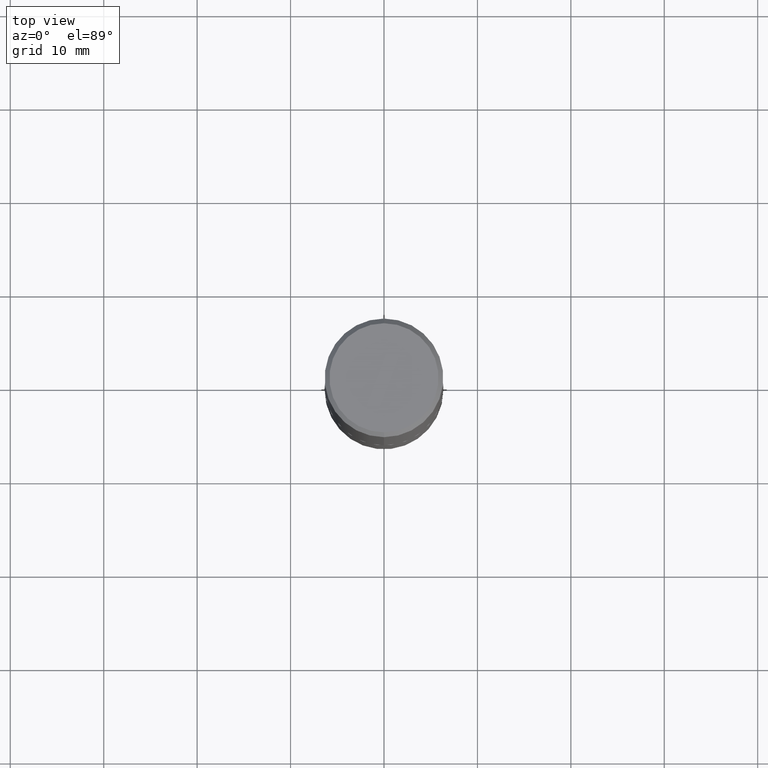
[diagram: clean part render]
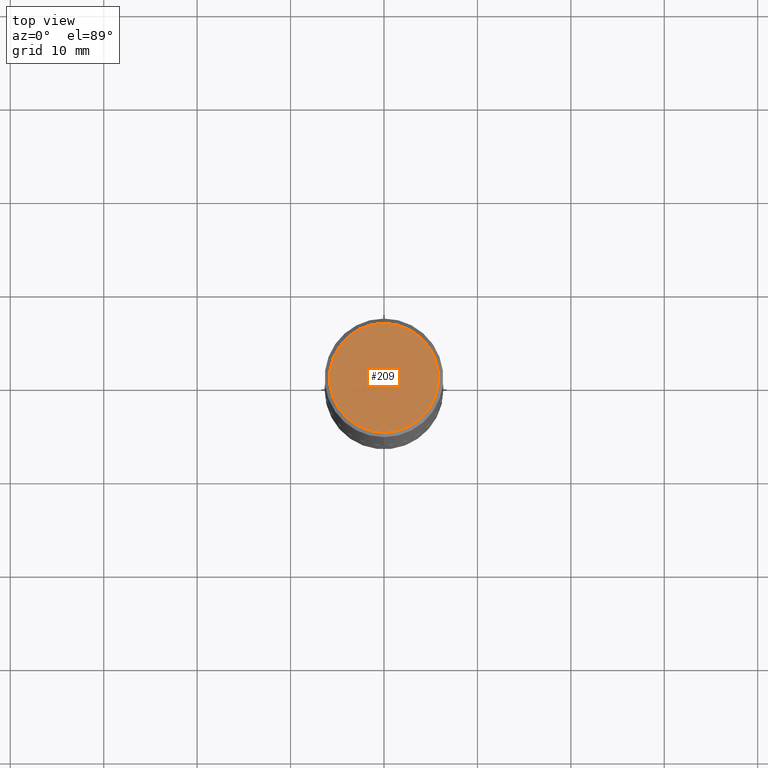
[diagram: same view with one face highlighted and labeled with its STEP entity id]
A machine part, top view. The second image highlights one B-rep face of the part: STEP entity #209.
In plain terms, the highlighted planar face has unit normal (0, -0, -1).
Its self-contained STEP definition (entity closure, byte-faithful):
#43 = CARTESIAN_POINT ( 'NONE',  ( 1.675911042644703379E-15, 0.2299999999999997602, -5.981521084091029123E-16 ) ) ;
#49 = DIRECTION ( 'NONE',  ( -2.446505465165992010E-29, 3.489996784179595405E-15, 1.000000000000000000 ) ) ;
#57 = CARTESIAN_POINT ( 'NONE',  ( -1.646519519465166376E-15, -0.2299999999999997602, 1.007246412313509341E-15 ) ) ;
#68 = VERTEX_POINT ( 'NONE', #57 ) ;
#73 = PLANE ( 'NONE',  #92 ) ;
#75 = DIRECTION ( 'NONE',  ( -6.982962677686265922E-15, -1.000000000000000000, 3.489996784179595405E-15 ) ) ;
#79 = AXIS2_PLACEMENT_3D ( 'NONE', #346, #49, #111 ) ;
#92 = AXIS2_PLACEMENT_3D ( 'NONE', #101, #269, #202 ) ;
#101 = CARTESIAN_POINT ( 'NONE',  ( 1.606081415867839490E-15, 0.2299999999999997602, -7.004256843852046181E-16 ) ) ;
#107 = CARTESIAN_POINT ( 'NONE',  ( -5.004257251352038458E-45, 7.138689025262842706E-31, 2.045471519522032143E-16 ) ) ;
#111 = DIRECTION ( 'NONE',  ( -6.982962677686265922E-15, -1.000000000000000000, 3.489996784179595405E-15 ) ) ;
#117 = CIRCLE ( 'NONE', #242, 0.2299999999999997602 ) ;
#202 = DIRECTION ( 'NONE',  ( 6.982962677686265922E-15, 1.000000000000000000, -3.489996784179595405E-15 ) ) ;
#209 = ADVANCED_FACE ( 'NONE', ( #296 ), #73, .F. ) ;
#227 = EDGE_LOOP ( 'NONE', ( #245, #369 ) ) ;
#238 = CIRCLE ( 'NONE', #79, 0.2299999999999997602 ) ;
#242 = AXIS2_PLACEMENT_3D ( 'NONE', #107, #287, #75 ) ;
#245 = ORIENTED_EDGE ( 'NONE', *, *, #378, .T. ) ;
#269 = DIRECTION ( 'NONE',  ( 2.446505465165992010E-29, -3.489996784179595405E-15, -1.000000000000000000 ) ) ;
#287 = DIRECTION ( 'NONE',  ( -2.446505465165992010E-29, 3.489996784179595405E-15, 1.000000000000000000 ) ) ;
#296 = FACE_OUTER_BOUND ( 'NONE', #227, .T. ) ;
#318 = EDGE_CURVE ( 'NONE', #68, #382, #117, .T. ) ;
#346 = CARTESIAN_POINT ( 'NONE',  ( -5.004257251352038458E-45, 7.138689025262842706E-31, 2.045471519522032143E-16 ) ) ;
#369 = ORIENTED_EDGE ( 'NONE', *, *, #318, .T. ) ;
#378 = EDGE_CURVE ( 'NONE', #382, #68, #238, .T. ) ;
#382 = VERTEX_POINT ( 'NONE', #43 ) ;